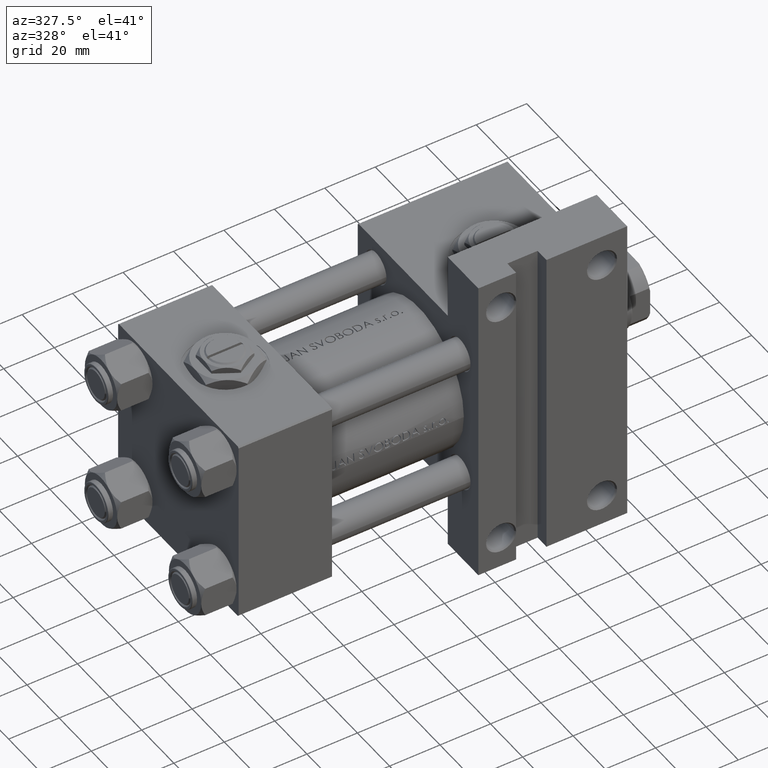
[diagram: clean part render]
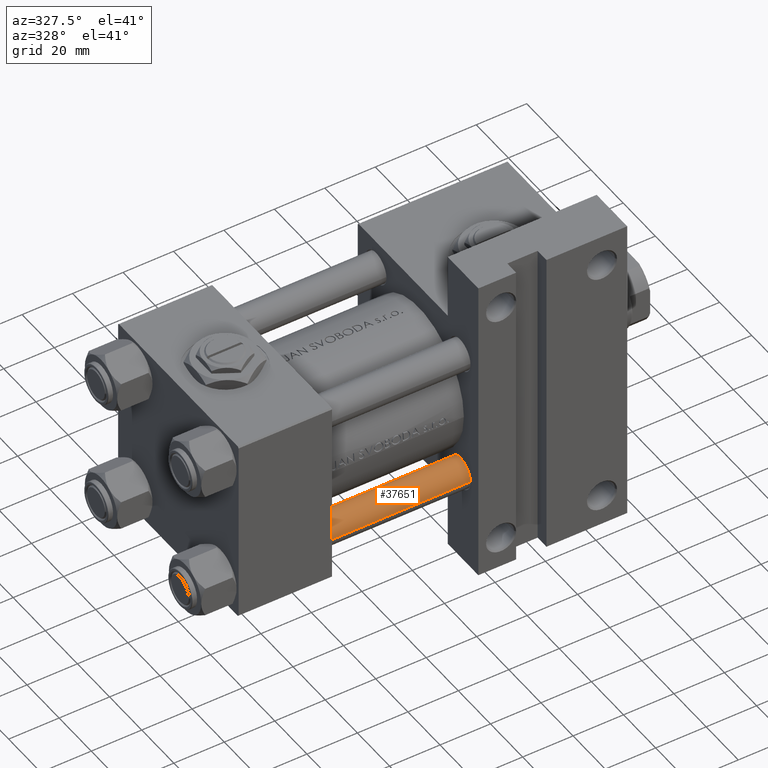
[diagram: same view with one face highlighted and labeled with its STEP entity id]
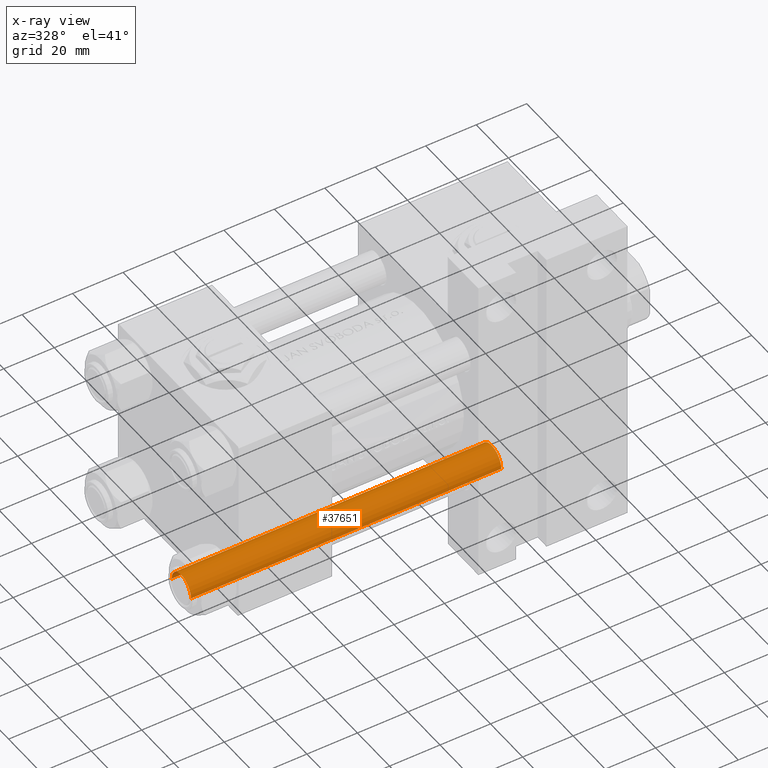
[diagram: x-ray of the same camera — body ghosted, the highlighted face saturated]
A machine part, auxiliary view. The second image highlights one B-rep face of the part: STEP entity #37651.
The next image is the same camera in x-ray: the body ghosted, the highlighted face saturated — about 0% of this face is hidden behind the body in this view.
In plain terms, the highlighted cylindrical surface (edge-blend (fillet) strip) has radius 6 mm, axis along (1, 0, 0).
Its self-contained STEP definition (entity closure, byte-faithful):
#183 = CARTESIAN_POINT ( 'NONE',  ( -6.000000000000000888, 0.000000000000000000, 0.4999999999999865663 ) ) ;
#1062 = CARTESIAN_POINT ( 'NONE',  ( 6.000000000000000888, 7.347880794884120722E-16, 0.4999999999999865663 ) ) ;
#2426 = VERTEX_POINT ( 'NONE', #48358 ) ;
#2568 = VERTEX_POINT ( 'NONE', #35003 ) ;
#2744 = DIRECTION ( 'NONE',  ( -1.000000000000000000, 0.000000000000000000, 0.000000000000000000 ) ) ;
#3780 = DIRECTION ( 'NONE',  ( 0.000000000000000000, 0.000000000000000000, -1.000000000000000000 ) ) ;
#4089 = DIRECTION ( 'NONE',  ( -0.000000000000000000, -0.000000000000000000, -1.000000000000000000 ) ) ;
#6777 = CYLINDRICAL_SURFACE ( 'NONE', #33023, 6.000000000000000888 ) ;
#7627 = DIRECTION ( 'NONE',  ( 1.000000000000000000, 0.000000000000000000, 0.000000000000000000 ) ) ;
#7962 = EDGE_CURVE ( 'NONE', #42627, #41305, #36496, .T. ) ;
#9968 = EDGE_CURVE ( 'NONE', #2426, #41305, #45810, .T. ) ;
#10780 = ORIENTED_EDGE ( 'NONE', *, *, #7962, .T. ) ;
#10830 = CIRCLE ( 'NONE', #38876, 6.000000000000000888 ) ;
#11406 = CARTESIAN_POINT ( 'NONE',  ( -6.000000000000000888, 0.000000000000000000, 124.0000000000000000 ) ) ;
#13236 = AXIS2_PLACEMENT_3D ( 'NONE', #49327, #42024, #7627 ) ;
#16355 = CARTESIAN_POINT ( 'NONE',  ( 6.000000000000000888, 7.347880794884120722E-16, 124.0000000000000000 ) ) ;
#20002 = ORIENTED_EDGE ( 'NONE', *, *, #9968, .F. ) ;
#20731 = VECTOR ( 'NONE', #4089, 1000.000000000000000 ) ;
#30139 = CARTESIAN_POINT ( 'NONE',  ( 0.000000000000000000, 0.000000000000000000, 124.0000000000000000 ) ) ;
#30694 = EDGE_CURVE ( 'NONE', #2568, #42627, #31185, .T. ) ;
#31185 = LINE ( 'NONE', #16355, #41369 ) ;
#31427 = DIRECTION ( 'NONE',  ( -0.000000000000000000, -0.000000000000000000, -1.000000000000000000 ) ) ;
#33023 = AXIS2_PLACEMENT_3D ( 'NONE', #30139, #33651, #2744 ) ;
#33651 = DIRECTION ( 'NONE',  ( -0.000000000000000000, -0.000000000000000000, -1.000000000000000000 ) ) ;
#35003 = CARTESIAN_POINT ( 'NONE',  ( 6.000000000000000888, 7.347880794884120722E-16, 123.5000000000000426 ) ) ;
#36496 = CIRCLE ( 'NONE', #13236, 6.000000000000000888 ) ;
#37651 = ADVANCED_FACE ( 'NONE', ( #49214 ), #6777, .T. ) ;
#37852 = ORIENTED_EDGE ( 'NONE', *, *, #30694, .T. ) ;
#38876 = AXIS2_PLACEMENT_3D ( 'NONE', #38932, #3780, #41968 ) ;
#38932 = CARTESIAN_POINT ( 'NONE',  ( 0.000000000000000000, 0.000000000000000000, 123.5000000000000426 ) ) ;
#39078 = EDGE_LOOP ( 'NONE', ( #48826, #37852, #10780, #20002 ) ) ;
#41305 = VERTEX_POINT ( 'NONE', #183 ) ;
#41369 = VECTOR ( 'NONE', #31427, 1000.000000000000000 ) ;
#41968 = DIRECTION ( 'NONE',  ( 1.000000000000000000, 0.000000000000000000, 0.000000000000000000 ) ) ;
#42024 = DIRECTION ( 'NONE',  ( -0.000000000000000000, -0.000000000000000000, 1.000000000000000000 ) ) ;
#42627 = VERTEX_POINT ( 'NONE', #1062 ) ;
#45810 = LINE ( 'NONE', #11406, #20731 ) ;
#48358 = CARTESIAN_POINT ( 'NONE',  ( -6.000000000000000888, 0.000000000000000000, 123.5000000000000426 ) ) ;
#48421 = EDGE_CURVE ( 'NONE', #2426, #2568, #10830, .T. ) ;
#48826 = ORIENTED_EDGE ( 'NONE', *, *, #48421, .T. ) ;
#49214 = FACE_OUTER_BOUND ( 'NONE', #39078, .T. ) ;
#49327 = CARTESIAN_POINT ( 'NONE',  ( 0.000000000000000000, 0.000000000000000000, 0.4999999999999865663 ) ) ;